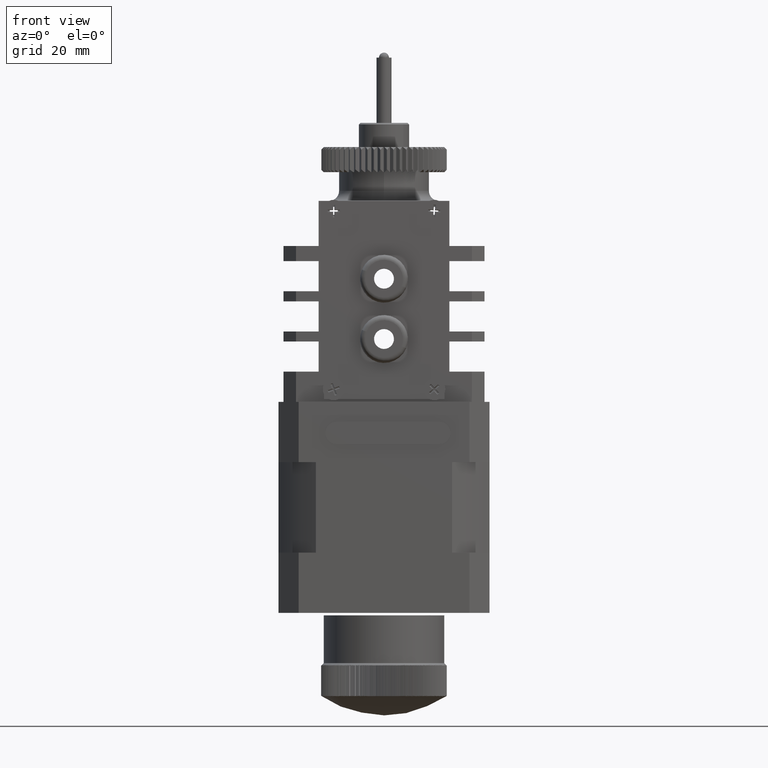
[diagram: clean part render]
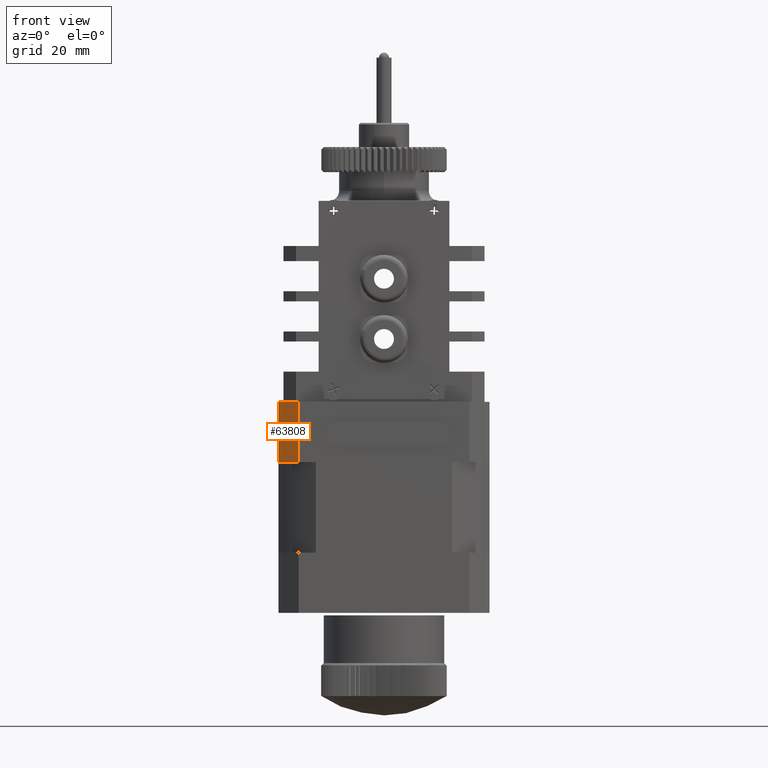
[diagram: same view with one face highlighted and labeled with its STEP entity id]
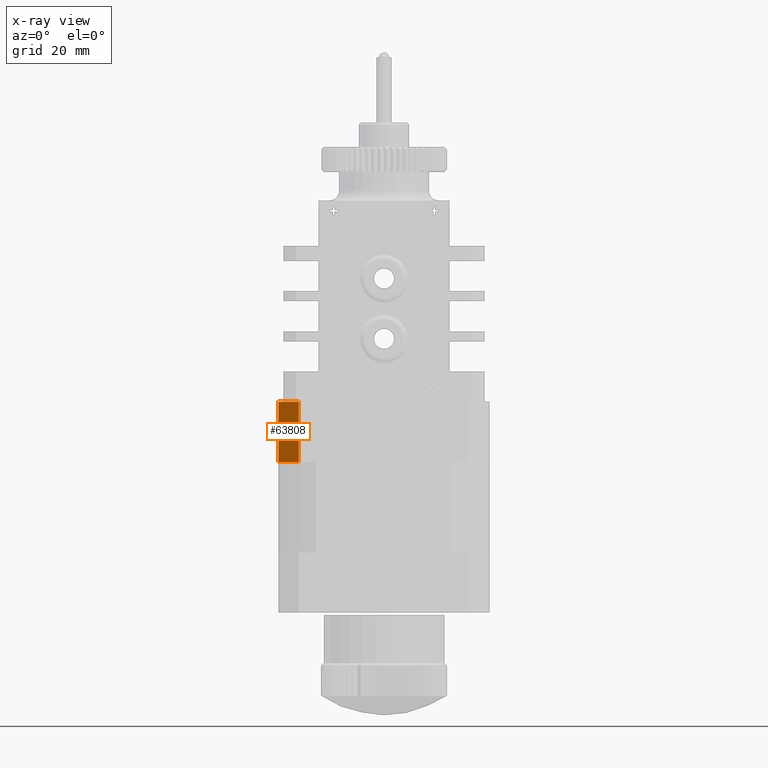
[diagram: x-ray of the same camera — body ghosted, the highlighted face saturated]
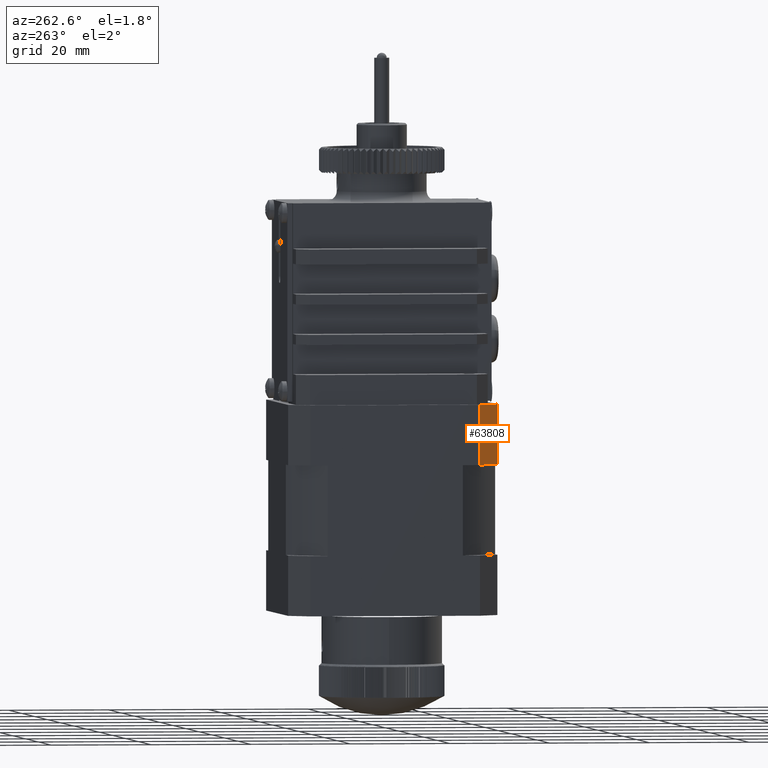
[diagram: same view with one face highlighted and labeled with its STEP entity id]
A machine part, front view. The second image highlights one B-rep face of the part: STEP entity #63808.
The next image is the same camera in x-ray: the body ghosted, the highlighted face saturated — about 0% of this face is hidden behind the body in this view.
A second angle (auxiliary view) of the same face is appended — the face is thin or edge-on in the first view.
In plain terms, the highlighted planar face has unit normal (-0.7071, -0.7071, 0).
Its self-contained STEP definition (entity closure, byte-faithful):
#42884 = CARTESIAN_POINT ( 'NONE',  ( -2.784018830195583500, -1.479623589057533300, -0.2565379127733842800 ) ) ;
#42961 = CARTESIAN_POINT ( 'NONE',  ( -2.626538515234952500, -1.637103904018165900, -0.2565379127733842800 ) ) ;
#43311 = DIRECTION ( 'NONE',  ( 0.7071067811865439100, -0.7071067811865512400, -2.669080515091579000E-016 ) ) ;
#43312 = VECTOR ( 'NONE', #43311, 39.37007874015748100 ) ;
#43314 = CARTESIAN_POINT ( 'NONE',  ( -2.705278672715267800, -1.558363746537850400, -0.2565379127733842800 ) ) ;
#43327 = LINE ( 'NONE', #43314, #43312 ) ;
#44085 = CARTESIAN_POINT ( 'NONE',  ( -2.626538515234952500, -1.637103904018165900, -0.7289788576552739300 ) ) ;
#44439 = FACE_OUTER_BOUND ( 'NONE', #63811, .T. ) ;
#44441 = DIRECTION ( 'NONE',  ( -2.550043509685906900E-016, 1.224606353822377300E-016, -1.000000000000000000 ) ) ;
#44442 = VECTOR ( 'NONE', #44441, 39.37007874015748100 ) ;
#44444 = CARTESIAN_POINT ( 'NONE',  ( -2.626538515234953000, -1.637103904018165900, -0.7289788576552739300 ) ) ;
#44446 = LINE ( 'NONE', #44444, #44442 ) ;
#44499 = DIRECTION ( 'NONE',  ( 2.550043509685906900E-016, -1.224606353822377300E-016, 1.000000000000000000 ) ) ;
#44501 = VECTOR ( 'NONE', #44499, 39.37007874015748100 ) ;
#44503 = CARTESIAN_POINT ( 'NONE',  ( -2.784018830195583500, -1.479623589057533100, -0.2565379127733842800 ) ) ;
#44504 = LINE ( 'NONE', #44503, #44501 ) ;
#44510 = CARTESIAN_POINT ( 'NONE',  ( -2.784018830195583500, -1.479623589057533100, -0.7289788576552739300 ) ) ;
#44511 = DIRECTION ( 'NONE',  ( -0.7071067811865439100, 0.7071067811865512400, 2.669080515091579000E-016 ) ) ;
#44512 = VECTOR ( 'NONE', #44511, 39.37007874015748100 ) ;
#44515 = CARTESIAN_POINT ( 'NONE',  ( -2.784018830195583500, -1.479623589057533100, -0.7289788576552739300 ) ) ;
#44516 = LINE ( 'NONE', #44515, #44512 ) ;
#44523 = DIRECTION ( 'NONE',  ( -0.7071067811865439100, 0.7071067811865512400, 2.669080515091579000E-016 ) ) ;
#44525 = DIRECTION ( 'NONE',  ( -0.7071067811865512400, -0.7071067811865439100, 9.372256009477268200E-017 ) ) ;
#44526 = CARTESIAN_POINT ( 'NONE',  ( -2.784018830195583500, -1.479623589057533100, -0.7289788576552739300 ) ) ;
#44528 = AXIS2_PLACEMENT_3D ( 'NONE', #44526, #44525, #44523 ) ;
#44532 = PLANE ( 'NONE',  #44528 ) ;
#63447 = VERTEX_POINT ( 'NONE', #42884 ) ;
#63484 = VERTEX_POINT ( 'NONE', #42961 ) ;
#63547 = EDGE_CURVE ( 'NONE', #63447, #63484, #43327, .T. ) ;
#63739 = VERTEX_POINT ( 'NONE', #44085 ) ;
#63807 = EDGE_CURVE ( 'NONE', #63484, #63739, #44446, .T. ) ;
#63808 = ADVANCED_FACE ( 'NONE', ( #44439 ), #44532, .T. ) ;
#63811 = EDGE_LOOP ( 'NONE', ( #63813, #63822, #63824, #63826 ) ) ;
#63813 = ORIENTED_EDGE ( 'NONE', *, *, #63816, .F. ) ;
#63816 = EDGE_CURVE ( 'NONE', #63739, #63819, #44516, .T. ) ;
#63819 = VERTEX_POINT ( 'NONE', #44510 ) ;
#63822 = ORIENTED_EDGE ( 'NONE', *, *, #63807, .F. ) ;
#63824 = ORIENTED_EDGE ( 'NONE', *, *, #63547, .F. ) ;
#63826 = ORIENTED_EDGE ( 'NONE', *, *, #63828, .F. ) ;
#63828 = EDGE_CURVE ( 'NONE', #63819, #63447, #44504, .T. ) ;